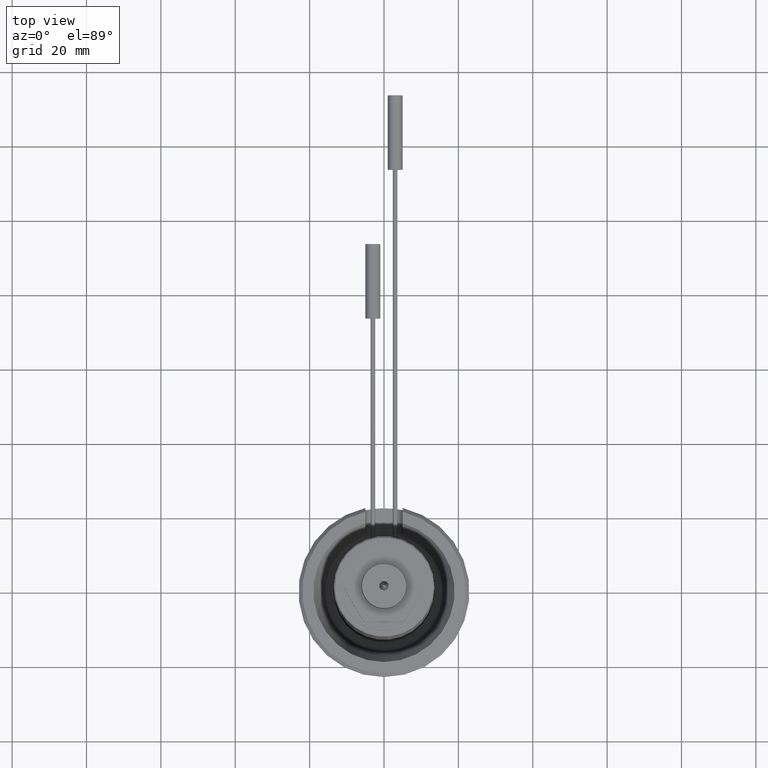
[diagram: clean part render]
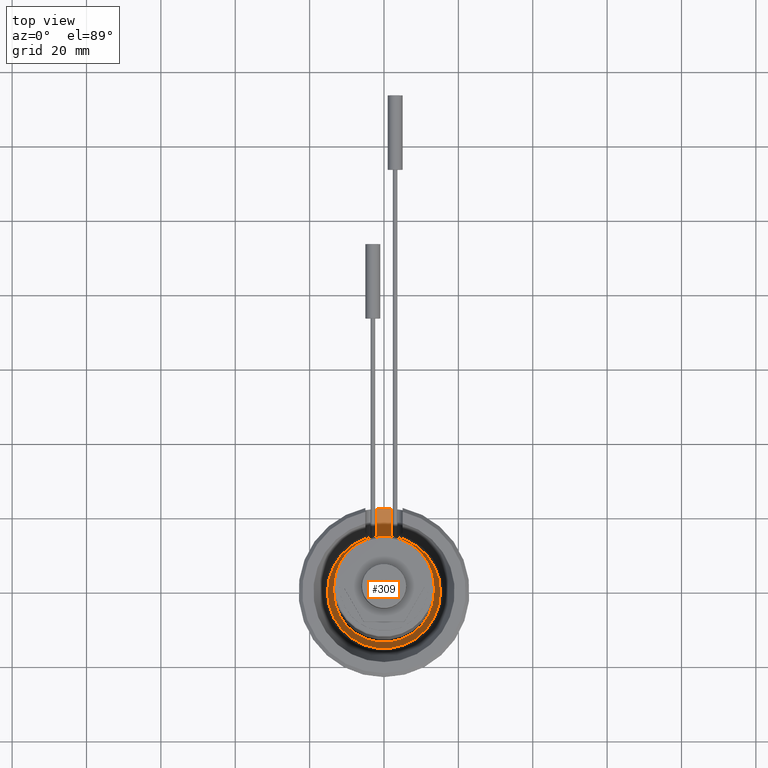
[diagram: same view with one face highlighted and labeled with its STEP entity id]
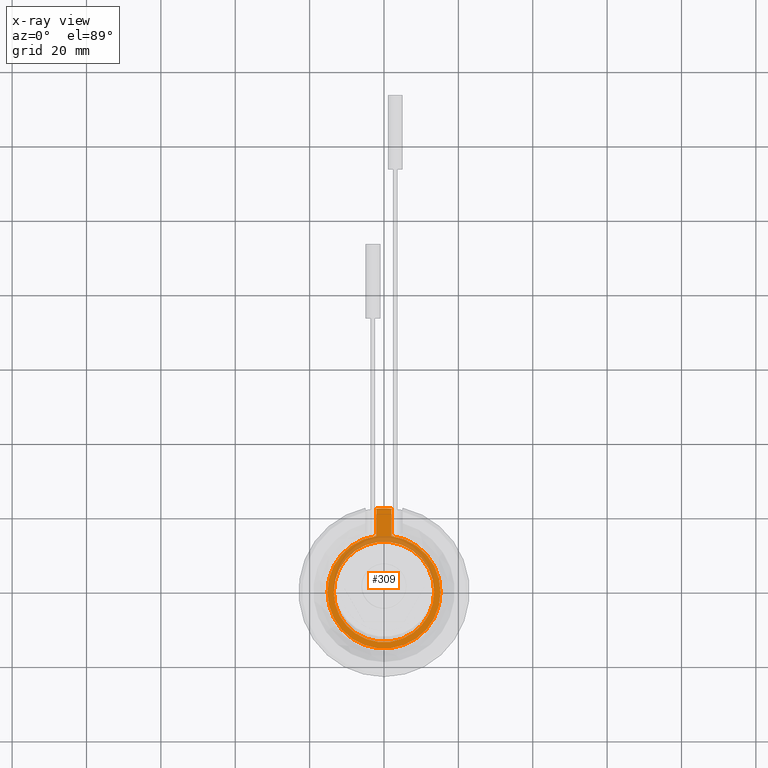
[diagram: x-ray of the same camera — body ghosted, the highlighted face saturated]
A machine part, top view. The second image highlights one B-rep face of the part: STEP entity #309.
The next image is the same camera in x-ray: the body ghosted, the highlighted face saturated — about 22% of this face is hidden behind the body in this view.
In plain terms, the highlighted planar face has unit normal (0, 0, 1).
Its self-contained STEP definition (entity closure, byte-faithful):
#63=LINE('',#1934,#107);
#64=LINE('',#1935,#108);
#107=VECTOR('',#1443,1.);
#108=VECTOR('',#1444,1.);
#209=PLANE('',#1184);
#309=ADVANCED_FACE('',(#410,#411),#209,.T.);
#410=FACE_BOUND('',#488,.T.);
#411=FACE_BOUND('',#489,.T.);
#488=EDGE_LOOP('',(#670,#671,#672,#673));
#489=EDGE_LOOP('',(#674));
#670=ORIENTED_EDGE('',*,*,#958,.F.);
#671=ORIENTED_EDGE('',*,*,#999,.T.);
#672=ORIENTED_EDGE('',*,*,#962,.F.);
#673=ORIENTED_EDGE('',*,*,#1000,.T.);
#674=ORIENTED_EDGE('',*,*,#978,.F.);
#854=VERTEX_POINT('',#1755);
#855=VERTEX_POINT('',#1757);
#858=VERTEX_POINT('',#1780);
#859=VERTEX_POINT('',#1781);
#871=VERTEX_POINT('',#1864);
#958=EDGE_CURVE('',#854,#855,#1062,.T.);
#962=EDGE_CURVE('',#858,#859,#1064,.T.);
#978=EDGE_CURVE('',#871,#871,#1070,.T.);
#999=EDGE_CURVE('',#854,#859,#63,.T.);
#1000=EDGE_CURVE('',#858,#855,#64,.T.);
#1062=CIRCLE('',#1146,22.5);
#1064=CIRCLE('',#1149,15.199833762822);
#1070=CIRCLE('',#1159,13.5000000000001);
#1146=AXIS2_PLACEMENT_3D('',#1756,#1356,#1357);
#1149=AXIS2_PLACEMENT_3D('',#1779,#1363,#1364);
#1159=AXIS2_PLACEMENT_3D('',#1863,#1387,#1388);
#1184=AXIS2_PLACEMENT_3D('',#1936,#1445,#1446);
#1356=DIRECTION('',(0.,0.,-1.));
#1357=DIRECTION('',(1.,0.,0.));
#1363=DIRECTION('',(0.,0.,-1.));
#1364=DIRECTION('',(1.,0.,0.));
#1387=DIRECTION('',(0.,0.,1.));
#1388=DIRECTION('',(1.,0.,0.));
#1443=DIRECTION('',(0.,-1.,0.));
#1444=DIRECTION('',(0.,1.,0.));
#1445=DIRECTION('',(0.,0.,1.));
#1446=DIRECTION('',(1.,0.,0.));
#1755=CARTESIAN_POINT('',(-1.99999999999501,22.4109348310155,15.5));
#1756=CARTESIAN_POINT('',(0.,0.,15.5));
#1757=CARTESIAN_POINT('',(1.99999999999501,22.4109348310155,15.5));
#1779=CARTESIAN_POINT('',(0.,0.,15.5));
#1780=CARTESIAN_POINT('',(1.99999999999501,15.0676788662834,15.5));
#1781=CARTESIAN_POINT('',(-1.99999999999501,15.0676788662834,15.5));
#1863=CARTESIAN_POINT('',(0.,0.,15.5));
#1864=CARTESIAN_POINT('',(13.5000000000001,0.,15.5));
#1934=CARTESIAN_POINT('',(-1.99999999999501,14.3539174589195,15.5));
#1935=CARTESIAN_POINT('',(1.99999999999501,21.9374109684815,15.5));
#1936=CARTESIAN_POINT('',(13.5000000000001,0.,15.5));